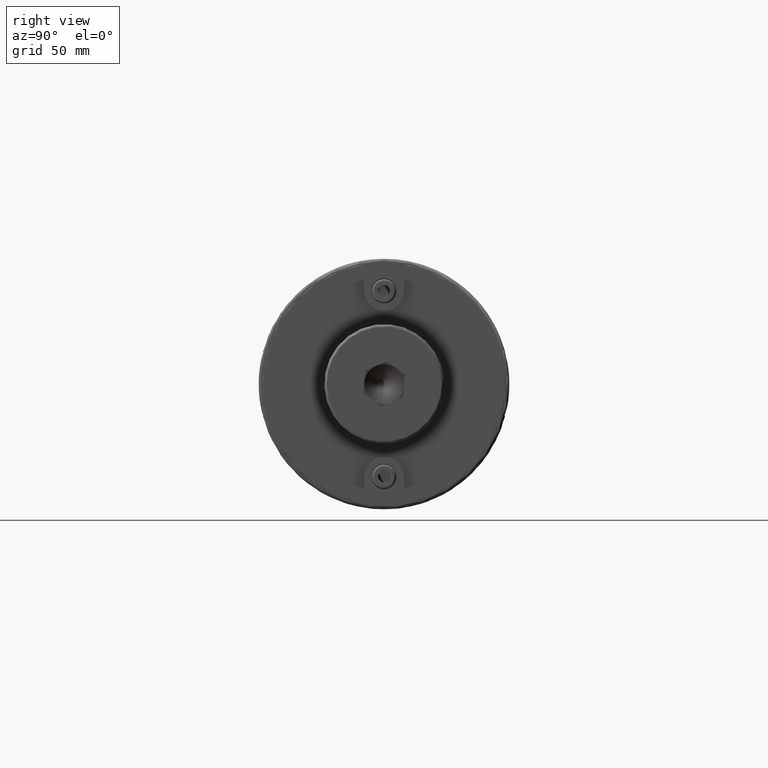
[diagram: clean part render]
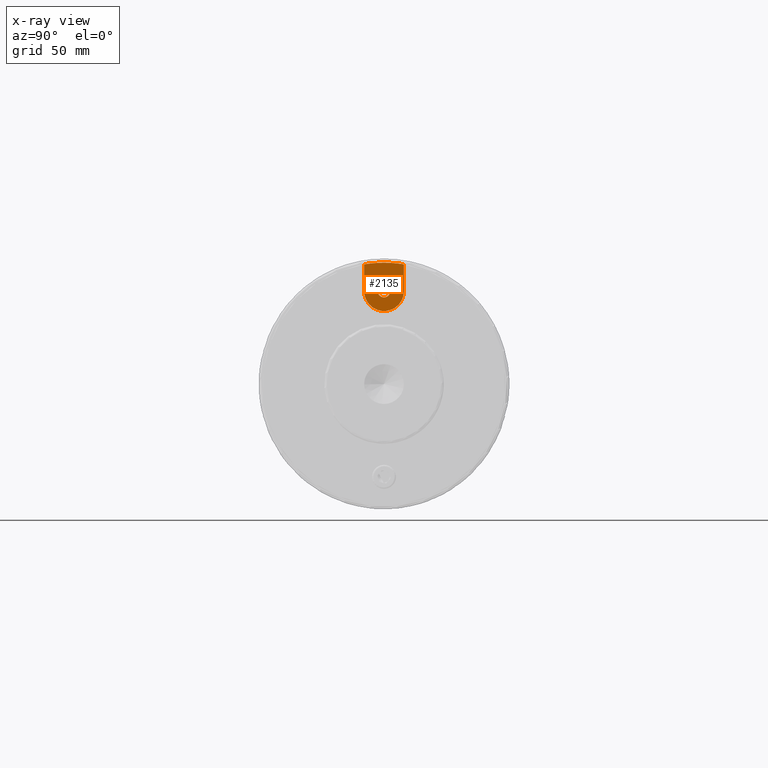
[diagram: x-ray — body ghosted, one internal face saturated and labeled with its STEP entity id]
A machine part, right view, then the same camera in x-ray: the body is ghosted and one INTERNAL B-rep face — a face not visible from any outside direction — is saturated and labeled: STEP entity #2135.
In plain terms, the highlighted planar face has unit normal (1, 0, 0).
Its self-contained STEP definition (entity closure, byte-faithful):
#524=FACE_BOUND('',#777,.T.);
#540=CIRCLE('',#2390,48.385);
#541=CIRCLE('',#2391,7.935);
#542=CIRCLE('',#2392,48.385);
#543=CIRCLE('',#2393,2.4892);
#668=FACE_OUTER_BOUND('',#776,.T.);
#776=EDGE_LOOP('',(#1571,#1572,#1573,#1574,#1575));
#777=EDGE_LOOP('',(#1576));
#902=LINE('',#3384,#1023);
#903=LINE('',#3391,#1024);
#1023=VECTOR('',#2684,10.);
#1024=VECTOR('',#2691,10.);
#1142=VERTEX_POINT('',#3378);
#1144=VERTEX_POINT('',#3382);
#1145=VERTEX_POINT('',#3386);
#1146=VERTEX_POINT('',#3388);
#1147=VERTEX_POINT('',#3390);
#1148=VERTEX_POINT('',#3393);
#1313=EDGE_CURVE('',#1144,#1142,#902,.T.);
#1314=EDGE_CURVE('',#1142,#1145,#540,.T.);
#1315=EDGE_CURVE('',#1146,#1144,#541,.T.);
#1316=EDGE_CURVE('',#1147,#1146,#903,.T.);
#1317=EDGE_CURVE('',#1145,#1147,#542,.T.);
#1318=EDGE_CURVE('',#1148,#1148,#543,.T.);
#1571=ORIENTED_EDGE('',*,*,#1314,.F.);
#1572=ORIENTED_EDGE('',*,*,#1313,.F.);
#1573=ORIENTED_EDGE('',*,*,#1315,.F.);
#1574=ORIENTED_EDGE('',*,*,#1316,.F.);
#1575=ORIENTED_EDGE('',*,*,#1317,.F.);
#1576=ORIENTED_EDGE('',*,*,#1318,.F.);
#2082=PLANE('',#2389);
#2135=ADVANCED_FACE('',(#668,#524),#2082,.T.);
#2389=AXIS2_PLACEMENT_3D('',#3385,#2685,#2686);
#2390=AXIS2_PLACEMENT_3D('',#3387,#2687,#2688);
#2391=AXIS2_PLACEMENT_3D('',#3389,#2689,#2690);
#2392=AXIS2_PLACEMENT_3D('',#3392,#2692,#2693);
#2393=AXIS2_PLACEMENT_3D('',#3394,#2694,#2695);
#2684=DIRECTION('',(0.,2.78358388029665E-16,1.));
#2685=DIRECTION('center_axis',(1.,0.,0.));
#2686=DIRECTION('ref_axis',(0.,1.22464679914735E-16,1.));
#2687=DIRECTION('center_axis',(-1.,0.,0.));
#2688=DIRECTION('ref_axis',(0.,0.,-1.));
#2689=DIRECTION('center_axis',(-1.,0.,0.));
#2690=DIRECTION('ref_axis',(0.,-1.,1.22464679914735E-16));
#2691=DIRECTION('',(0.,3.34290282001942E-17,-1.));
#2692=DIRECTION('center_axis',(-1.,0.,0.));
#2693=DIRECTION('ref_axis',(0.,0.,-1.));
#2694=DIRECTION('center_axis',(1.,0.,0.));
#2695=DIRECTION('ref_axis',(0.,1.22464679914735E-16,1.));
#3378=CARTESIAN_POINT('',(93.53,-7.93499999999999,47.7299067671413));
#3382=CARTESIAN_POINT('',(93.53,-7.93499999999999,37.02));
#3384=CARTESIAN_POINT('',(93.53,-7.93499999999999,58.385));
#3385=CARTESIAN_POINT('Origin',(93.53,8.13155033763384E-15,43.735));
#3386=CARTESIAN_POINT('',(93.53,-5.92545353767447E-15,48.385));
#3387=CARTESIAN_POINT('Origin',(93.53,0.,0.));
#3388=CARTESIAN_POINT('',(93.53,7.935,37.02));
#3389=CARTESIAN_POINT('Origin',(93.53,7.95706187626184E-15,37.02));
#3390=CARTESIAN_POINT('',(93.53,7.935,47.7299067671413));
#3391=CARTESIAN_POINT('',(93.53,7.935,37.02));
#3392=CARTESIAN_POINT('Origin',(93.53,0.,0.));
#3393=CARTESIAN_POINT('',(93.53,7.95706187626184E-15,34.5308));
#3394=CARTESIAN_POINT('Origin',(93.53,7.95706187626184E-15,37.02));